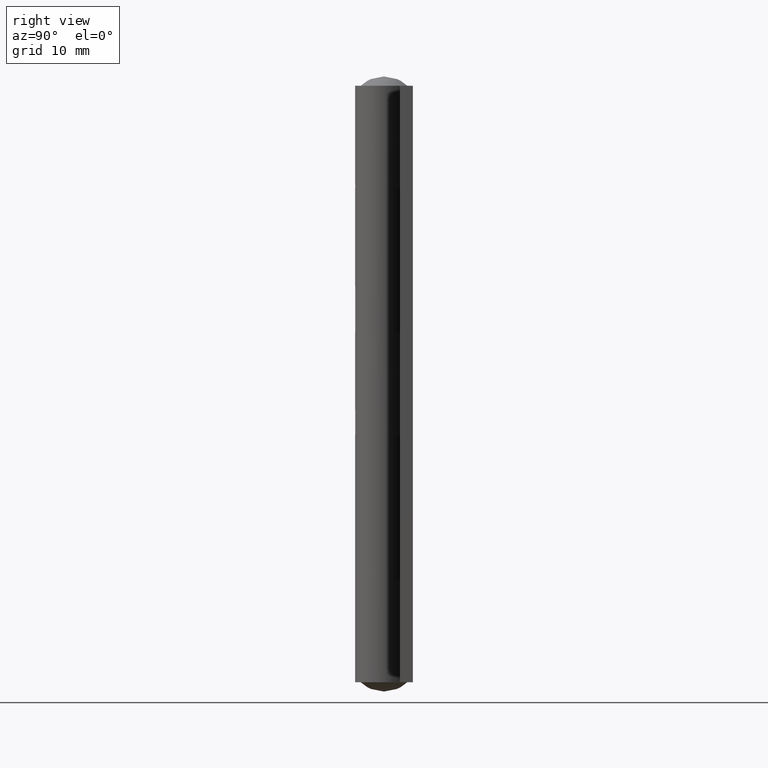
[diagram: clean part render]
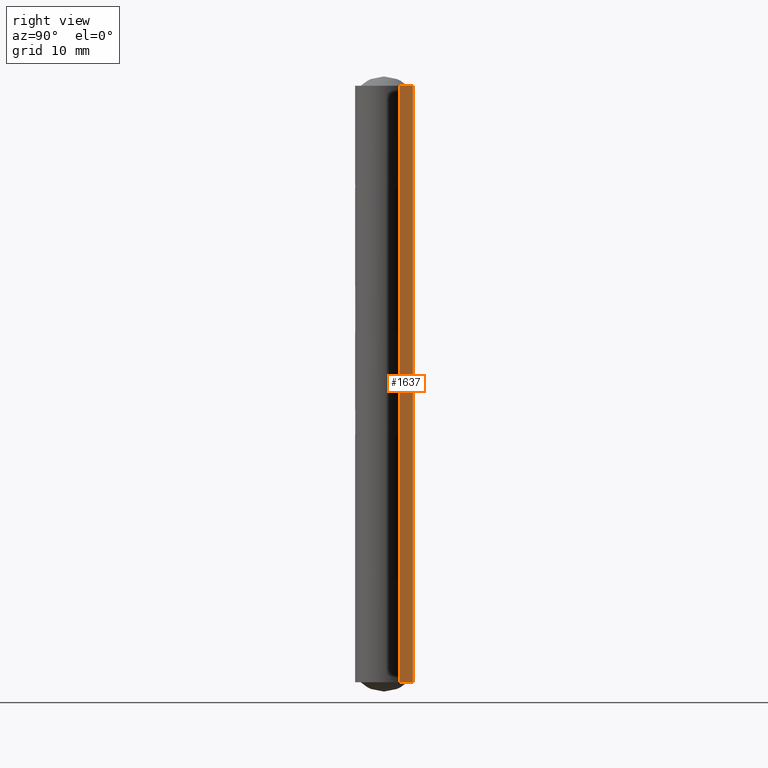
[diagram: same view with one face highlighted and labeled with its STEP entity id]
A machine part, right view. The second image highlights one B-rep face of the part: STEP entity #1637.
In plain terms, the highlighted face is a freeform B-spline surface patch.
Its self-contained STEP definition (entity closure, byte-faithful):
#1200=CARTESIAN_POINT('',(21.0,1.699995999999940,0.0));
#1201=VERTEX_POINT('',#1200);
#1207=CARTESIAN_POINT('',(21.0,1.699995999999940,64.000008000000093));
#1208=VERTEX_POINT('',#1207);
#1209=CARTESIAN_POINT('',(21.0,1.699995999999940,64.000008000000093));
#1210=CARTESIAN_POINT('',(21.0,1.699995999999940,0.0));
#1211=QUASI_UNIFORM_CURVE('',1,(#1209,#1210),.UNSPECIFIED.,.F.,.U.);
#1212=EDGE_CURVE('',#1208,#1201,#1211,.T.);
#1515=CARTESIAN_POINT('',(21.0,3.099997999999915,0.0));
#1516=VERTEX_POINT('',#1515);
#1522=CARTESIAN_POINT('',(21.0,3.099997999999915,0.0));
#1523=CARTESIAN_POINT('',(21.0,1.699995999999940,0.0));
#1524=QUASI_UNIFORM_CURVE('',1,(#1522,#1523),.UNSPECIFIED.,.F.,.U.);
#1525=EDGE_CURVE('',#1516,#1201,#1524,.T.);
#1572=CARTESIAN_POINT('',(21.0,3.099997999999915,64.000008000000093));
#1573=VERTEX_POINT('',#1572);
#1614=CARTESIAN_POINT('',(21.0,3.099997999999915,64.000008000000093));
#1615=CARTESIAN_POINT('',(21.0,1.699995999999940,64.000008000000093));
#1616=QUASI_UNIFORM_CURVE('',1,(#1614,#1615),.UNSPECIFIED.,.F.,.U.);
#1617=EDGE_CURVE('',#1573,#1208,#1616,.T.);
#1622=CARTESIAN_POINT('',(21.0,1.630065902813416,67.196808275555668));
#1623=CARTESIAN_POINT('',(21.0,1.630065902813416,-3.196801992169553));
#1624=CARTESIAN_POINT('',(21.0,3.169928134737418,67.196808275555668));
#1625=CARTESIAN_POINT('',(21.0,3.169928134737418,-3.196801992169553));
#1626=B_SPLINE_SURFACE_WITH_KNOTS('',1,1,((#1622,#1624),(#1623,#1625)),.UNSPECIFIED.,.F.,.F.,.U.,(2,2),(2,2),(0.0,70.393610267725222),(0.041708334948495,0.958291687403247),.UNSPECIFIED.);
#1627=ORIENTED_EDGE('',*,*,#1525,.F.);
#1628=CARTESIAN_POINT('',(21.0,3.099997999999915,64.000008000000093));
#1629=CARTESIAN_POINT('',(21.0,3.099997999999915,0.0));
#1630=QUASI_UNIFORM_CURVE('',1,(#1628,#1629),.UNSPECIFIED.,.F.,.U.);
#1631=EDGE_CURVE('',#1573,#1516,#1630,.T.);
#1632=ORIENTED_EDGE('',*,*,#1631,.F.);
#1633=ORIENTED_EDGE('',*,*,#1617,.T.);
#1634=ORIENTED_EDGE('',*,*,#1212,.T.);
#1635=EDGE_LOOP('',(#1627,#1632,#1633,#1634));
#1636=FACE_OUTER_BOUND('',#1635,.T.);
#1637=ADVANCED_FACE('',(#1636),#1626,.T.);